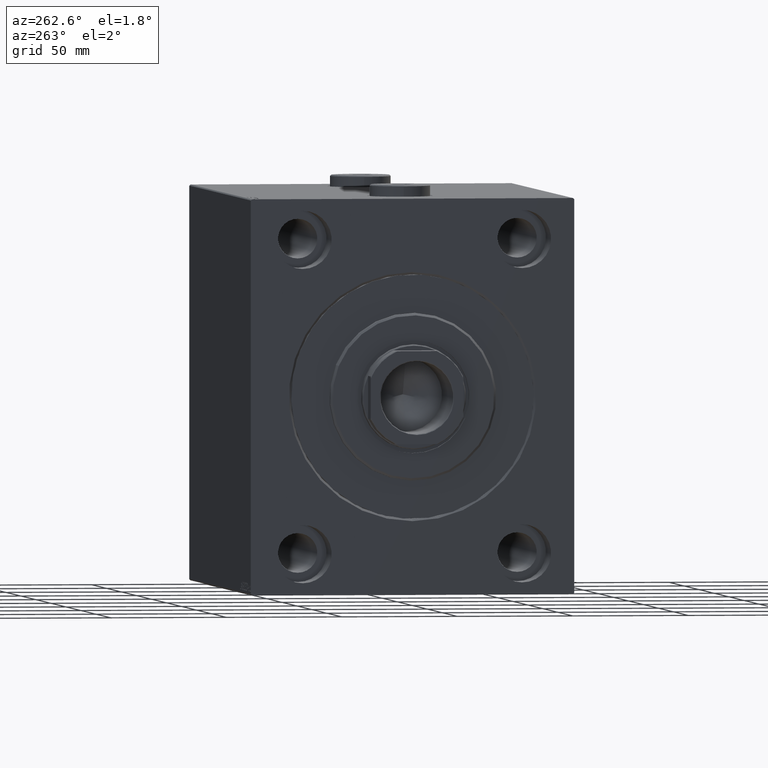
[diagram: clean part render]
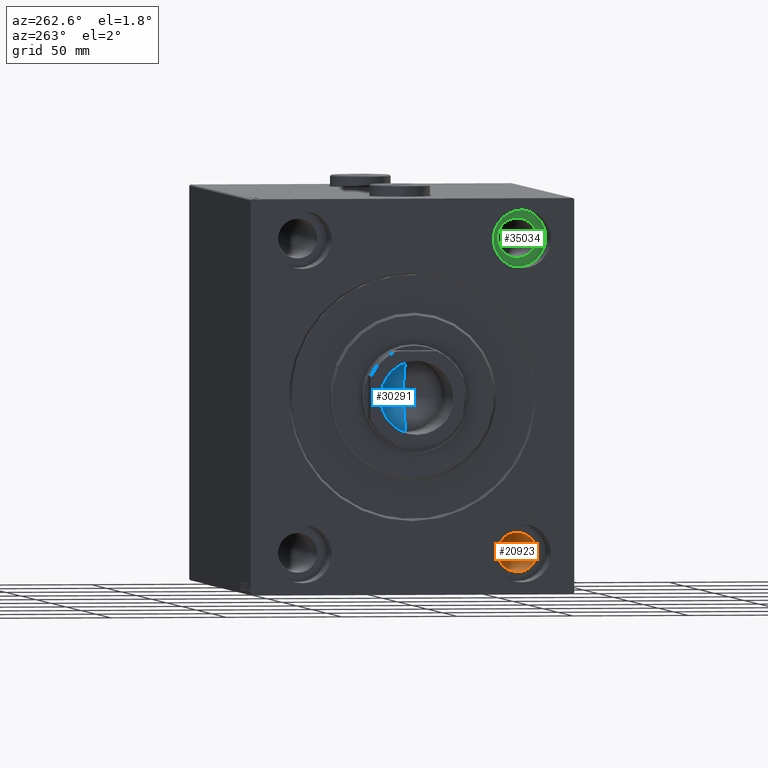
[diagram: same view with three faces highlighted in distinct colors, each labeled with its STEP entity id]
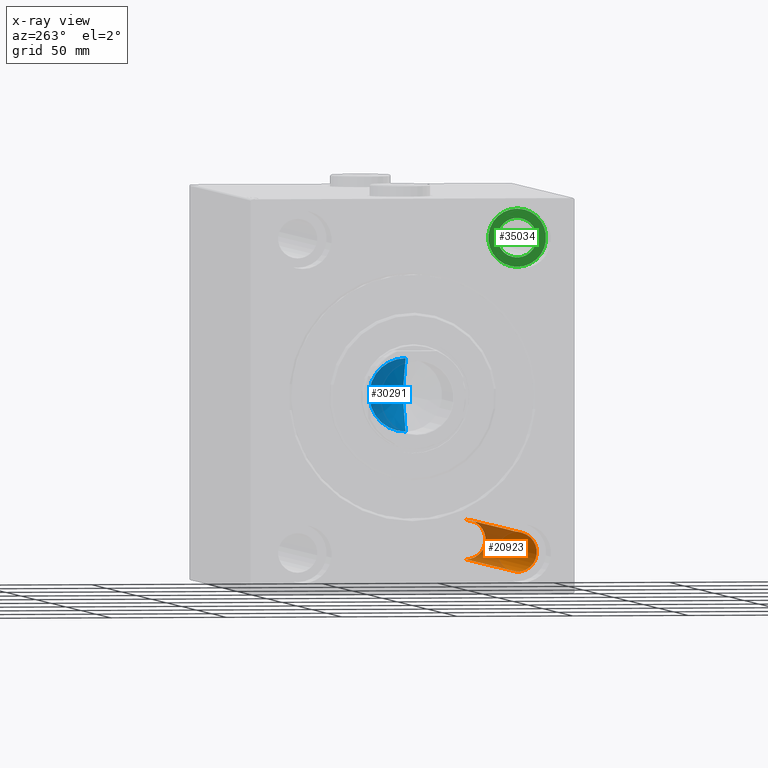
[diagram: x-ray of the same camera — body ghosted, the three highlighted faces saturated]
A machine part, auxiliary view with three faces highlighted in distinct colors.
The next image is the same camera in x-ray (body ghosted, the three faces saturated) — at least one of them is partly hidden behind the body in this view.
Their STEP definitions:

[orange] entity #20923 — the highlighted cylindrical surface (edge-blend (fillet) strip) has radius 8.5 mm, axis along (-1, -0, -0).
#896 = VECTOR ( 'NONE', #36375, 1000.000000000000000 ) ;
#1102 = CYLINDRICAL_SURFACE ( 'NONE', #38458, 8.499999999999992895 ) ;
#4272 = CARTESIAN_POINT ( 'NONE',  ( 188.0000000000000000, -47.49999999999999289, -59.00000000000001421 ) ) ;
#4543 = FACE_OUTER_BOUND ( 'NONE', #18854, .T. ) ;
#6304 = ORIENTED_EDGE ( 'NONE', *, *, #16145, .F. ) ;
#7624 = LINE ( 'NONE', #11514, #28106 ) ;
#7713 = ORIENTED_EDGE ( 'NONE', *, *, #31520, .T. ) ;
#7748 = CARTESIAN_POINT ( 'NONE',  ( 17.00000000000001421, -47.49999999999999289, -67.50000000000000000 ) ) ;
#9121 = DIRECTION ( 'NONE',  ( -1.000000000000000000, -0.000000000000000000, -0.000000000000000000 ) ) ;
#10496 = ORIENTED_EDGE ( 'NONE', *, *, #10940, .F. ) ;
#10940 = EDGE_CURVE ( 'NONE', #22238, #11275, #26524, .T. ) ;
#11275 = VERTEX_POINT ( 'NONE', #13390 ) ;
#11514 = CARTESIAN_POINT ( 'NONE',  ( 205.0000000000000284, -47.49999999999999289, -76.00000000000000000 ) ) ;
#13390 = CARTESIAN_POINT ( 'NONE',  ( 17.00000000000001421, -47.49999999999999289, -59.00000000000001421 ) ) ;
#14262 = AXIS2_PLACEMENT_3D ( 'NONE', #23865, #22959, #34419 ) ;
#14490 = ORIENTED_EDGE ( 'NONE', *, *, #14702, .T. ) ;
#14702 = EDGE_CURVE ( 'NONE', #26991, #25079, #7624, .T. ) ;
#16145 = EDGE_CURVE ( 'NONE', #26991, #22238, #36929, .T. ) ;
#18713 = CARTESIAN_POINT ( 'NONE',  ( 205.0000000000000284, -47.49999999999999289, -59.00000000000001421 ) ) ;
#18854 = EDGE_LOOP ( 'NONE', ( #6304, #14490, #7713, #10496 ) ) ;
#18967 = CARTESIAN_POINT ( 'NONE',  ( 205.0000000000000284, -47.49999999999999289, -67.50000000000000000 ) ) ;
#20923 = ADVANCED_FACE ( 'NONE', ( #4543 ), #1102, .F. ) ;
#20944 = CARTESIAN_POINT ( 'NONE',  ( 188.0000000000000000, -47.49999999999999289, -76.00000000000000000 ) ) ;
#22238 = VERTEX_POINT ( 'NONE', #4272 ) ;
#22414 = DIRECTION ( 'NONE',  ( 0.000000000000000000, 0.000000000000000000, 1.000000000000000000 ) ) ;
#22959 = DIRECTION ( 'NONE',  ( -1.000000000000000000, -0.000000000000000000, -0.000000000000000000 ) ) ;
#23277 = CIRCLE ( 'NONE', #43775, 8.499999999999992895 ) ;
#23865 = CARTESIAN_POINT ( 'NONE',  ( 188.0000000000000000, -47.49999999999999289, -67.50000000000000000 ) ) ;
#25079 = VERTEX_POINT ( 'NONE', #43160 ) ;
#26524 = LINE ( 'NONE', #18713, #896 ) ;
#26991 = VERTEX_POINT ( 'NONE', #20944 ) ;
#28106 = VECTOR ( 'NONE', #31477, 1000.000000000000000 ) ;
#28835 = DIRECTION ( 'NONE',  ( 0.000000000000000000, 0.000000000000000000, 1.000000000000000000 ) ) ;
#31477 = DIRECTION ( 'NONE',  ( -1.000000000000000000, -0.000000000000000000, -0.000000000000000000 ) ) ;
#31520 = EDGE_CURVE ( 'NONE', #25079, #11275, #23277, .T. ) ;
#32045 = DIRECTION ( 'NONE',  ( -1.000000000000000000, 0.000000000000000000, 0.000000000000000000 ) ) ;
#34419 = DIRECTION ( 'NONE',  ( 0.000000000000000000, 0.000000000000000000, -1.000000000000000000 ) ) ;
#36375 = DIRECTION ( 'NONE',  ( -1.000000000000000000, -0.000000000000000000, -0.000000000000000000 ) ) ;
#36929 = CIRCLE ( 'NONE', #14262, 8.499999999999992895 ) ;
#38458 = AXIS2_PLACEMENT_3D ( 'NONE', #18967, #9121, #22414 ) ;
#43160 = CARTESIAN_POINT ( 'NONE',  ( 17.00000000000001421, -47.49999999999999289, -76.00000000000000000 ) ) ;
#43775 = AXIS2_PLACEMENT_3D ( 'NONE', #7748, #32045, #28835 ) ;

[blue] entity #30291 — the highlighted conical surface has half-angle 59 deg.
#1261 = AXIS2_PLACEMENT_3D ( 'NONE', #25046, #21160, #39034 ) ;
#3207 = EDGE_CURVE ( 'NONE', #39104, #25977, #7287, .T. ) ;
#3463 = CIRCLE ( 'NONE', #21009, 15.74999999999999289 ) ;
#6152 = DIRECTION ( 'NONE',  ( 0.8571673007021120005, 0.000000000000000000, 0.5150380749100547106 ) ) ;
#6807 = ORIENTED_EDGE ( 'NONE', *, *, #3207, .F. ) ;
#7287 = LINE ( 'NONE', #7957, #11776 ) ;
#7439 = EDGE_LOOP ( 'NONE', ( #6807, #20554, #13551 ) ) ;
#7957 = CARTESIAN_POINT ( 'NONE',  ( -15.74999999999999289, 1.928818708657080556E-15, 156.0000000000000000 ) ) ;
#8154 = CARTESIAN_POINT ( 'NONE',  ( 0.000000000000000000, 0.000000000000000000, 156.0000000000000000 ) ) ;
#10399 = CARTESIAN_POINT ( 'NONE',  ( -15.74999999999999289, 1.928818708657080556E-15, 156.0000000000000000 ) ) ;
#11074 = FACE_OUTER_BOUND ( 'NONE', #7439, .T. ) ;
#11599 = DIRECTION ( 'NONE',  ( -0.000000000000000000, -0.000000000000000000, 1.000000000000000000 ) ) ;
#11776 = VECTOR ( 'NONE', #32489, 1000.000000000000000 ) ;
#12625 = CARTESIAN_POINT ( 'NONE',  ( -1.199718644317817648E-14, 0.000000000000000000, 146.5364452503159214 ) ) ;
#13551 = ORIENTED_EDGE ( 'NONE', *, *, #28789, .T. ) ;
#14167 = CARTESIAN_POINT ( 'NONE',  ( 15.74999999999999289, 0.000000000000000000, 156.0000000000000000 ) ) ;
#14309 = CARTESIAN_POINT ( 'NONE',  ( 15.74999999999999289, 0.000000000000000000, 156.0000000000000000 ) ) ;
#20312 = CONICAL_SURFACE ( 'NONE', #1261, 15.74999999999999289, 1.029744258676653867 ) ;
#20554 = ORIENTED_EDGE ( 'NONE', *, *, #35293, .T. ) ;
#21009 = AXIS2_PLACEMENT_3D ( 'NONE', #8154, #11599, #36567 ) ;
#21160 = DIRECTION ( 'NONE',  ( -0.000000000000000000, -0.000000000000000000, 1.000000000000000000 ) ) ;
#25046 = CARTESIAN_POINT ( 'NONE',  ( 0.000000000000000000, 0.000000000000000000, 156.0000000000000000 ) ) ;
#25977 = VERTEX_POINT ( 'NONE', #10399 ) ;
#28789 = EDGE_CURVE ( 'NONE', #38562, #25977, #3463, .T. ) ;
#30291 = ADVANCED_FACE ( 'NONE', ( #11074 ), #20312, .F. ) ;
#32489 = DIRECTION ( 'NONE',  ( -0.8571673007021120005, 1.049727191138618326E-16, 0.5150380749100547106 ) ) ;
#35293 = EDGE_CURVE ( 'NONE', #39104, #38562, #41664, .T. ) ;
#36567 = DIRECTION ( 'NONE',  ( 1.000000000000000000, 0.000000000000000000, 0.000000000000000000 ) ) ;
#38562 = VERTEX_POINT ( 'NONE', #14309 ) ;
#39034 = DIRECTION ( 'NONE',  ( 1.000000000000000000, 0.000000000000000000, 0.000000000000000000 ) ) ;
#39104 = VERTEX_POINT ( 'NONE', #12625 ) ;
#41664 = LINE ( 'NONE', #14167, #44578 ) ;
#44578 = VECTOR ( 'NONE', #6152, 1000.000000000000000 ) ;

[green] entity #35034 — the highlighted planar face has unit normal (-1, 0, 0).
#965 = DIRECTION ( 'NONE',  ( -1.000000000000000000, 0.000000000000000000, 0.000000000000000000 ) ) ;
#2513 = CARTESIAN_POINT ( 'NONE',  ( 17.00000000000001421, -47.49999999999997868, 67.50000000000000000 ) ) ;
#2791 = ORIENTED_EDGE ( 'NONE', *, *, #22550, .F. ) ;
#3311 = ORIENTED_EDGE ( 'NONE', *, *, #31100, .T. ) ;
#4757 = EDGE_LOOP ( 'NONE', ( #3311, #25294 ) ) ;
#5296 = FACE_OUTER_BOUND ( 'NONE', #4757, .T. ) ;
#5748 = PLANE ( 'NONE',  #45303 ) ;
#5921 = EDGE_CURVE ( 'NONE', #9573, #33143, #16254, .T. ) ;
#5969 = DIRECTION ( 'NONE',  ( -1.000000000000000000, 0.000000000000000000, 0.000000000000000000 ) ) ;
#7325 = VERTEX_POINT ( 'NONE', #20001 ) ;
#8659 = ORIENTED_EDGE ( 'NONE', *, *, #5921, .F. ) ;
#9297 = CIRCLE ( 'NONE', #40042, 12.50000000000001066 ) ;
#9573 = VERTEX_POINT ( 'NONE', #10936 ) ;
#10671 = DIRECTION ( 'NONE',  ( 0.000000000000000000, 0.000000000000000000, 1.000000000000000000 ) ) ;
#10936 = CARTESIAN_POINT ( 'NONE',  ( 17.00000000000001421, -47.49999999999997868, 59.00000000000000000 ) ) ;
#11340 = DIRECTION ( 'NONE',  ( 0.000000000000000000, 0.000000000000000000, 1.000000000000000000 ) ) ;
#13976 = DIRECTION ( 'NONE',  ( 0.000000000000000000, 0.000000000000000000, 1.000000000000000000 ) ) ;
#14322 = DIRECTION ( 'NONE',  ( -1.000000000000000000, 0.000000000000000000, 0.000000000000000000 ) ) ;
#16254 = CIRCLE ( 'NONE', #24309, 8.500000000000007105 ) ;
#18121 = CIRCLE ( 'NONE', #43745, 12.50000000000001066 ) ;
#20001 = CARTESIAN_POINT ( 'NONE',  ( 17.00000000000000000, -47.49999999999997868, 80.00000000000001421 ) ) ;
#21199 = CARTESIAN_POINT ( 'NONE',  ( 17.00000000000001421, -47.49999999999997868, 67.50000000000000000 ) ) ;
#22550 = EDGE_CURVE ( 'NONE', #33143, #9573, #38554, .T. ) ;
#23384 = CARTESIAN_POINT ( 'NONE',  ( 17.00000000000000000, 0.000000000000000000, 0.000000000000000000 ) ) ;
#24309 = AXIS2_PLACEMENT_3D ( 'NONE', #2513, #5969, #13976 ) ;
#25294 = ORIENTED_EDGE ( 'NONE', *, *, #29148, .T. ) ;
#28762 = CARTESIAN_POINT ( 'NONE',  ( 17.00000000000000000, -47.49999999999997868, 67.50000000000000000 ) ) ;
#29148 = EDGE_CURVE ( 'NONE', #32231, #7325, #9297, .T. ) ;
#30048 = CARTESIAN_POINT ( 'NONE',  ( 17.00000000000000000, -47.49999999999997868, 55.00000000000000000 ) ) ;
#30472 = AXIS2_PLACEMENT_3D ( 'NONE', #21199, #14322, #10671 ) ;
#31100 = EDGE_CURVE ( 'NONE', #7325, #32231, #18121, .T. ) ;
#32212 = EDGE_LOOP ( 'NONE', ( #2791, #8659 ) ) ;
#32231 = VERTEX_POINT ( 'NONE', #30048 ) ;
#33143 = VERTEX_POINT ( 'NONE', #36198 ) ;
#33940 = DIRECTION ( 'NONE',  ( 0.000000000000000000, 0.000000000000000000, 1.000000000000000000 ) ) ;
#35034 = ADVANCED_FACE ( 'NONE', ( #36701, #5296 ), #5748, .T. ) ;
#36198 = CARTESIAN_POINT ( 'NONE',  ( 17.00000000000001421, -47.49999999999997868, 76.00000000000001421 ) ) ;
#36701 = FACE_BOUND ( 'NONE', #32212, .T. ) ;
#37377 = DIRECTION ( 'NONE',  ( -1.000000000000000000, 0.000000000000000000, 0.000000000000000000 ) ) ;
#38554 = CIRCLE ( 'NONE', #30472, 8.500000000000007105 ) ;
#39706 = DIRECTION ( 'NONE',  ( 0.000000000000000000, 0.000000000000000000, 1.000000000000000000 ) ) ;
#40042 = AXIS2_PLACEMENT_3D ( 'NONE', #28762, #42731, #11340 ) ;
#40152 = CARTESIAN_POINT ( 'NONE',  ( 17.00000000000000000, -47.49999999999997868, 67.50000000000000000 ) ) ;
#42731 = DIRECTION ( 'NONE',  ( -1.000000000000000000, 0.000000000000000000, 0.000000000000000000 ) ) ;
#43745 = AXIS2_PLACEMENT_3D ( 'NONE', #40152, #965, #39706 ) ;
#45303 = AXIS2_PLACEMENT_3D ( 'NONE', #23384, #37377, #33940 ) ;